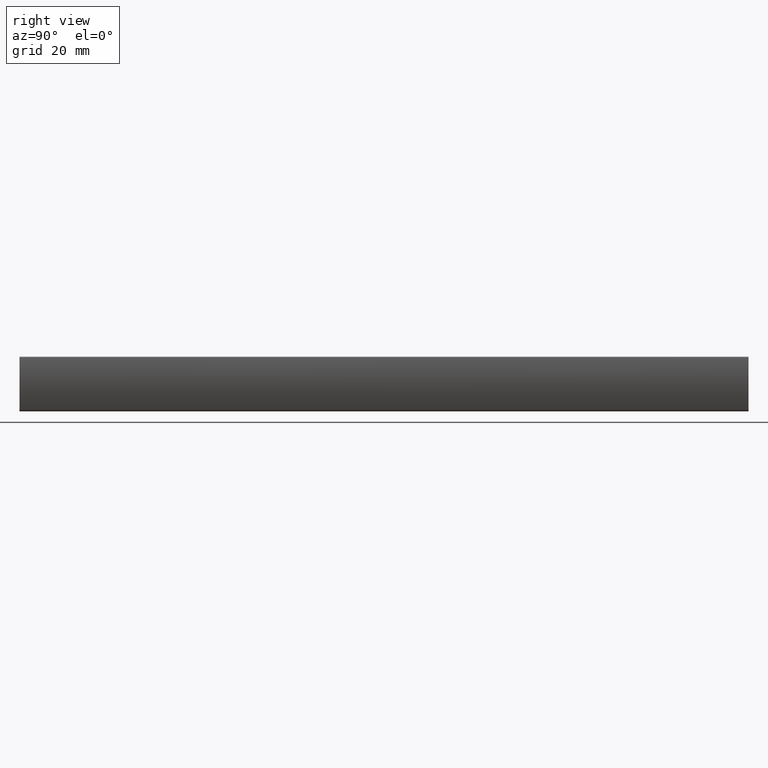
[diagram: clean part render]
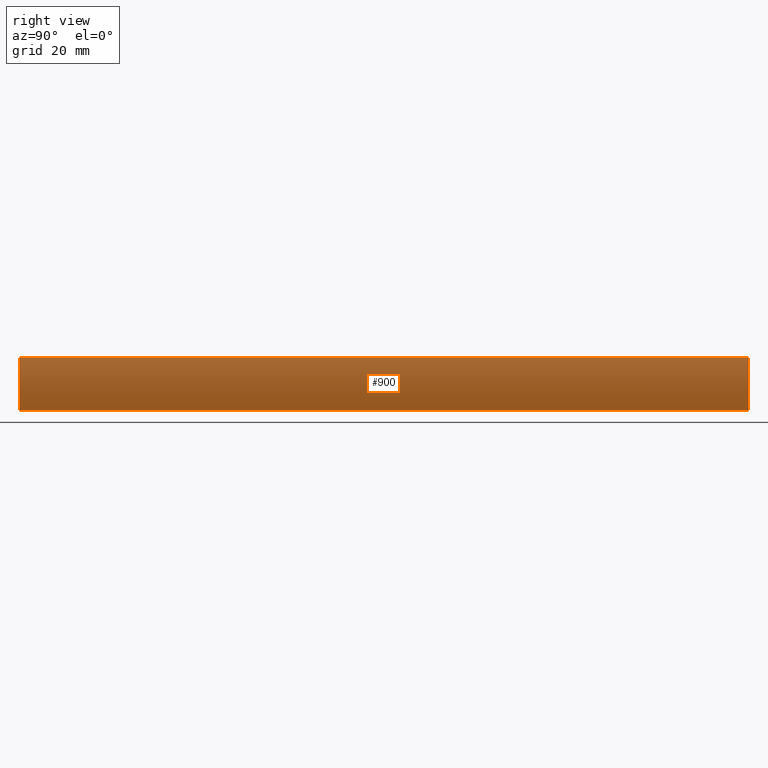
[diagram: same view with one face highlighted and labeled with its STEP entity id]
A machine part, right view. The second image highlights one B-rep face of the part: STEP entity #900.
In plain terms, the highlighted face is a freeform B-spline surface patch.
Its self-contained STEP definition (entity closure, byte-faithful):
#49=CARTESIAN_POINT('',(1.627461204812235,0.0,-14.022243352566640));
#50=VERTEX_POINT('',#49);
#51=CARTESIAN_POINT('',(2.790322580653415,0.0,0.402254483160042));
#52=VERTEX_POINT('',#51);
#53=CARTESIAN_POINT('',(1.627461204812235,0.0,-14.022243352566640));
#54=CARTESIAN_POINT('',(4.720688985627681,0.0,-7.012488265444718));
#55=CARTESIAN_POINT('',(2.790322580653415,0.0,0.402254483160042));
#63=(BOUNDED_CURVE()B_SPLINE_CURVE(2,(#53,#54,#55),.UNSPECIFIED.,.F.,.U.)CURVE()GEOMETRIC_REPRESENTATION_ITEM()QUASI_UNIFORM_CURVE()RATIONAL_B_SPLINE_CURVE((1.0,0.944367167422079,1.0))REPRESENTATION_ITEM(''));
#64=EDGE_CURVE('',#50,#52,#63,.T.);
#327=CARTESIAN_POINT('',(1.627461204812235,200.0,-14.022243352566640));
#328=VERTEX_POINT('',#327);
#329=CARTESIAN_POINT('',(2.790322580653415,200.0,0.402254483160042));
#330=VERTEX_POINT('',#329);
#331=CARTESIAN_POINT('',(1.627461204812108,200.0,-14.022243352566580));
#332=CARTESIAN_POINT('',(4.720688985627681,200.000000000000030,-7.012488265444718));
#333=CARTESIAN_POINT('',(2.790322580653388,200.0,0.402254483160037));
#341=(BOUNDED_CURVE()B_SPLINE_CURVE(2,(#331,#332,#333),.UNSPECIFIED.,.F.,.U.)CURVE()GEOMETRIC_REPRESENTATION_ITEM()QUASI_UNIFORM_CURVE()RATIONAL_B_SPLINE_CURVE((1.0,0.944367167422079,1.0))REPRESENTATION_ITEM(''));
#342=EDGE_CURVE('',#328,#330,#341,.T.);
#645=CARTESIAN_POINT('',(1.627461204812235,200.0,-14.022243352566640));
#646=CARTESIAN_POINT('',(1.627461204812235,0.0,-14.022243352566640));
#647=QUASI_UNIFORM_CURVE('',1,(#645,#646),.UNSPECIFIED.,.F.,.U.);
#648=EDGE_CURVE('',#328,#50,#647,.T.);
#870=CARTESIAN_POINT('',(2.790322580653415,200.0,0.402254483160042));
#871=CARTESIAN_POINT('',(2.790322580653415,0.0,0.402254483160042));
#872=QUASI_UNIFORM_CURVE('',1,(#870,#871),.UNSPECIFIED.,.F.,.U.);
#873=EDGE_CURVE('',#330,#52,#872,.T.);
#880=CARTESIAN_POINT('',(2.598092822164210,205.000000000000060,1.094116065072664));
#881=CARTESIAN_POINT('',(2.598092822164210,-5.125000000000001,1.094116065072664));
#882=CARTESIAN_POINT('',(5.001178063542914,204.999999999999970,-7.037978630005141));
#883=CARTESIAN_POINT('',(5.001178063542914,-5.125000000000001,-7.037978630005141));
#884=CARTESIAN_POINT('',(1.324561823806598,205.000000000000030,-14.679200772617666));
#885=CARTESIAN_POINT('',(1.324561823806598,-5.125000000000000,-14.679200772617666));
#893=(BOUNDED_SURFACE()B_SPLINE_SURFACE(1,2,((#880,#882,#884),(#881,#883,#885)),.UNSPECIFIED.,.F.,.F.,.U.)B_SPLINE_SURFACE_WITH_KNOTS((2,2),(3,3),(0.0,210.125000000000110),(0.0,16.372346253659199),.UNSPECIFIED.)GEOMETRIC_REPRESENTATION_ITEM()RATIONAL_B_SPLINE_SURFACE(((0.999217682008975,0.928746992497031,0.991495072863468),(0.999217682008975,0.928746992497031,0.991495072863468)))REPRESENTATION_ITEM('')SURFACE());
#894=ORIENTED_EDGE('',*,*,#64,.F.);
#895=ORIENTED_EDGE('',*,*,#648,.F.);
#896=ORIENTED_EDGE('',*,*,#342,.T.);
#897=ORIENTED_EDGE('',*,*,#873,.T.);
#898=EDGE_LOOP('',(#894,#895,#896,#897));
#899=FACE_OUTER_BOUND('',#898,.T.);
#900=ADVANCED_FACE('',(#899),#893,.T.);